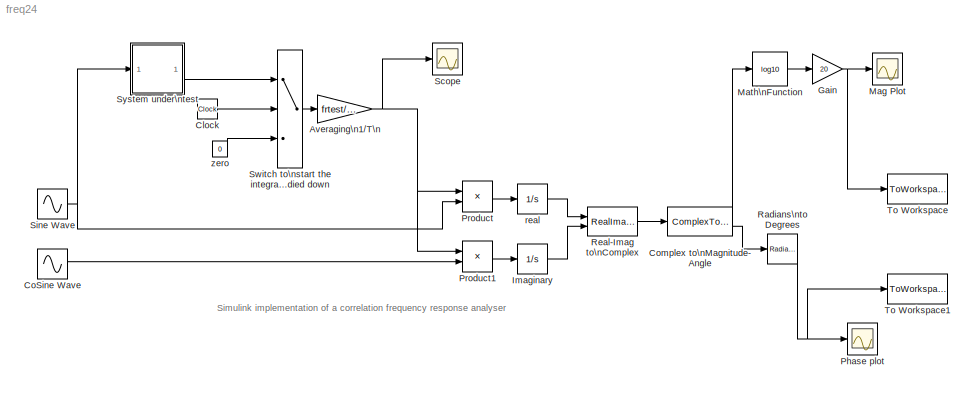
MODEL freq24
KIND model
BLOCK [Gain] Averaging\n1//T\n
  Gain = frtest/((cycles-nmiss)*pi)
BLOCK [Clock] Clock
  Decimation = 1
  DisplayTime = on
BLOCK [Sin] CoSine Wave
  Frequency = frtest
  Phase = pi/2
  Ports = [0, 1]
  SampleTime = 0
  SineType = Time based
BLOCK [ComplexToMagnitudeAngle] Complex to\nMagnitude-Angle
  Output = Magnitude and angle
  Ports = [1, 2]
BLOCK [Gain] Gain
  Gain = 20
BLOCK [Integrator] Imaginary
  Ports = [1, 1]
BLOCK [Scope] Mag Plot
  DataFormat = StructureWithTime
  NumInputPorts = 1
  Ports = [1]
  TimeRange = 60
  YMax = -3.6
  YMin = -4.1
BLOCK [Math] Math\nFunction
  Operator = log10
  Ports = [1, 1]
BLOCK [Scope] Phase plot
  DataFormat = StructureWithTime
  NumInputPorts = 1
  Ports = [1]
  TimeRange = 60
  YMax = -25
  YMin = -250
BLOCK [Product] Product
  Ports = [2, 1]
BLOCK [Product] Product1
  Ports = [2, 1]
BLOCK [Reference] Radians\nto Degrees  REF=simulink_extras/Transformations/Radians\nto Degrees
  Ports = [1, 1]
  ShowPortLabels = on
  SourceBlock = simulink_extras/Transformations/Radians\nto Degrees
  SourceType = RadiansToDegrees
BLOCK [RealImagToComplex] Real-Imag to\nComplex
  Input = Real and imag
  Ports = [2, 1]
BLOCK [Scope] Scope
  DataFormat = StructureWithTime
  NumInputPorts = 1
  Ports = [1]
  TimeRange = 60
  YMax = 0.08
  YMin = 0
BLOCK [Sin] Sine Wave
  Frequency = frtest
  Ports = [0, 1]
  SampleTime = 0
  SineType = Time based
BLOCK [Switch] Switch to\nstart the integration\nafter the transient has\ndied down
  Threshold = 2*nmiss*pi/frtest
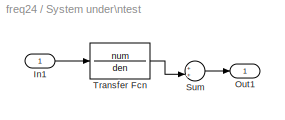
BLOCK [SubSystem] System under\ntest
  MinAlgLoopOccurrences = off
  Ports = [1, 1]
  RTWSystemCode = Auto
  TreatAsAtomicUnit = off
BLOCK [Inport] System under\ntest/In1
  IconDisplay = Port number
  LatchInput = off
  Port = 1
BLOCK [Outport] System under\ntest/Out1
  BusOutputAsStruct = off
  IconDisplay = Port number
BLOCK [Sum] System under\ntest/Sum
  IconShape = round
  Inputs = ++|
  Ports = [2, 1]
BLOCK [TransferFcn] System under\ntest/Transfer Fcn
  Denominator = den
  Numerator = num
BLOCK [ToWorkspace] To Workspace
  MaxDataPoints = inf
  SampleTime = -1
  SaveFormat = Array
  VariableName = mag1
BLOCK [ToWorkspace] To Workspace1
  MaxDataPoints = inf
  SampleTime = -1
  SaveFormat = Array
  VariableName = phase1
BLOCK [Integrator] real
  Ports = [1, 1]
BLOCK [Constant] zero
  Value = 0
ANNOTATION (root): Simulink implementation of a correlation frequency response analyser
NET Averaging\n1//T\n:1 -> Product1:1, Product:1, Scope:1
LINE Clock:1 -> Switch to\nstart the integration\nafter the transient has\ndied down:2
LINE CoSine Wave:1 -> Product1:2
LINE Complex to\nMagnitude-Angle:1 -> Math\nFunction:1
LINE Complex to\nMagnitude-Angle:2 -> Radians\nto Degrees:1
NET Gain:1 -> Mag Plot:1, To Workspace:1
LINE Imaginary:1 -> Real-Imag to\nComplex:2
LINE Math\nFunction:1 -> Gain:1
LINE Product1:1 -> Imaginary:1
LINE Product:1 -> real:1
NET Radians\nto Degrees:1 -> Phase plot:1, To Workspace1:1
LINE Real-Imag to\nComplex:1 -> Complex to\nMagnitude-Angle:1
NET Sine Wave:1 -> Product:2, System under\ntest:1
LINE Switch to\nstart the integration\nafter the transient has\ndied down:1 -> Averaging\n1//T\n:1
LINE System under\ntest/In1:1 -> System under\ntest/Transfer Fcn:1
LINE System under\ntest/Sum:1 -> System under\ntest/Out1:1
LINE System under\ntest/Transfer Fcn:1 -> System under\ntest/Sum:2
LINE System under\ntest:1 -> Switch to\nstart the integration\nafter the transient has\ndied down:1
LINE real:1 -> Real-Imag to\nComplex:1
LINE zero:1 -> Switch to\nstart the integration\nafter the transient has\ndied down:3
note: NET lines group one-source signal fan-out (src -> all destinations, sorted); 1:1 wires keep LINE
